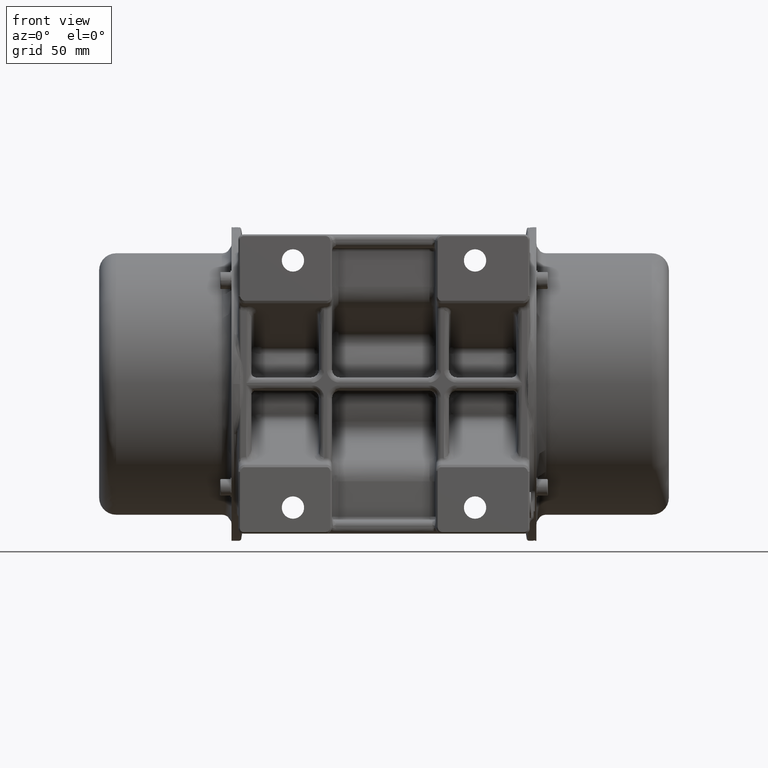
[diagram: clean part render]
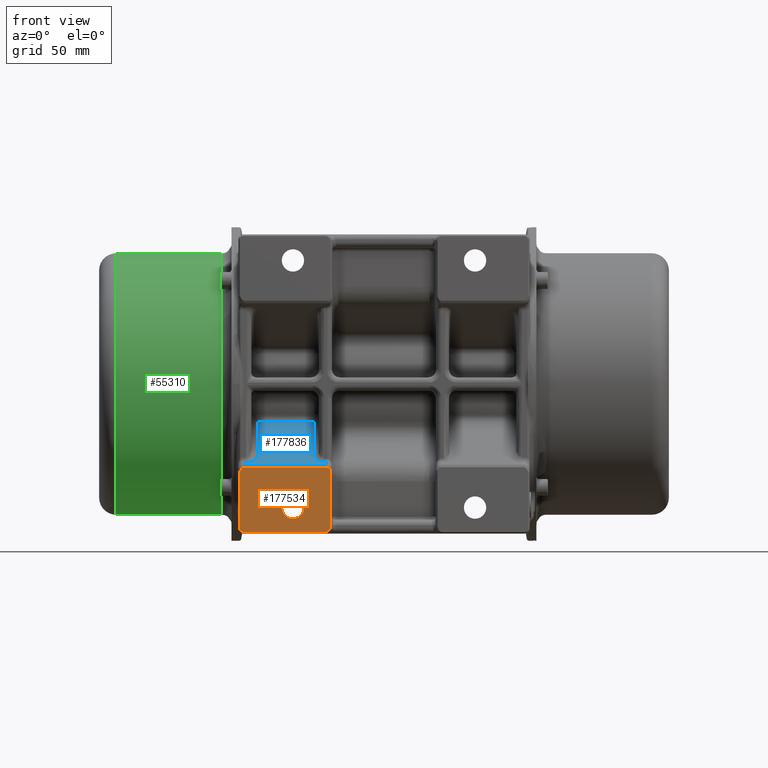
[diagram: same view with three faces highlighted in distinct colors, each labeled with its STEP entity id]
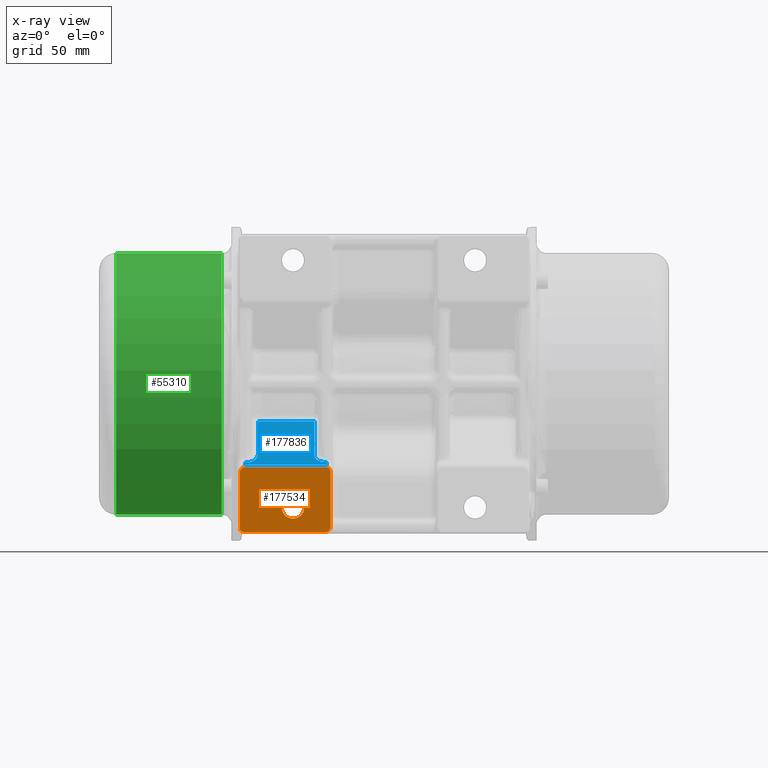
[diagram: x-ray of the same camera — body ghosted, the three highlighted faces saturated]
A machine part, front view with three faces highlighted in distinct colors.
The next image is the same camera in x-ray (body ghosted, the three faces saturated) — at least one of them is partly hidden behind the body in this view.
Their STEP definitions:

[orange] entity #177534 — the highlighted planar face has unit normal (0, -1, 0).
#216 = EDGE_CURVE ( 'NONE', #206508, #206510, #195931, .T. ) ;
#509 = EDGE_CURVE ( 'NONE', #206254, #206252, #75394, .T. ) ;
#518 = EDGE_CURVE ( 'NONE', #206722, #206723, #75395, .T. ) ;
#525 = EDGE_CURVE ( 'NONE', #206724, #206508, #2191, .T. ) ;
#527 = EDGE_CURVE ( 'NONE', #206720, #206510, #2192, .T. ) ;
#533 = EDGE_CURVE ( 'NONE', #206721, #206722, #2194, .T. ) ;
#535 = EDGE_CURVE ( 'NONE', #206723, #206724, #2195, .T. ) ;
#538 = EDGE_CURVE ( 'NONE', #206726, #206727, #2196, .T. ) ;
#540 = EDGE_CURVE ( 'NONE', #206720, #206725, #2197, .T. ) ;
#543 = EDGE_CURVE ( 'NONE', #206727, #206721, #2198, .T. ) ;
#545 = EDGE_CURVE ( 'NONE', #206725, #206726, #75391, .T. ) ;
#2191 = B_SPLINE_CURVE_WITH_KNOTS ( 'NONE', 3,
 ( #92772, #92794, #92795, #92796, #92797, #92798, #92799, #92800, #92801, #92802, #92803, #92804, #92805, #92806, #92807, #92808 ),
 .UNSPECIFIED., .F., .F.,
 ( 4, 1, 1, 1, 1, 1, 1, 1, 1, 1, 3, 4 ),
 ( 0.0000000000000000000, 5.314432684374213300E-005, 0.0001082284596164955900, 0.0001660795883194712300, 0.0002242846225185611400, 0.0003306525912901989500, 0.0003816689397036073500, 0.0004330112648005424600, 0.0005357733041503410000, 0.0006384791223128913300, 0.0008438116372617445400, 0.0008440754877739400700 ),
 .UNSPECIFIED. ) ;
#2192 = B_SPLINE_CURVE_WITH_KNOTS ( 'NONE', 3,
 ( #92776, #92810, #92811, #92812, #92813, #92814, #92815, #92816, #92817, #92818, #92819, #92820, #92821, #92822, #92823, #92824, #92825, #92826, #92827 ),
 .UNSPECIFIED., .F., .F.,
 ( 4, 1, 1, 1, 1, 1, 1, 1, 1, 1, 1, 1, 1, 1, 1, 1, 4 ),
 ( 0.0000000000000000000, 0.01080731625977897700, 0.01621097438966844300, 0.02161463251955796100, 0.02701829064944747500, 0.02972011971439216000, 0.03242194877933617100, 0.03512377784426985700, 0.03647469237679999000, 0.03782560690904873700, 0.03917652133382902600, 0.03985197930673353700, 0.04052743320859841100, 0.04120290425060083000, 0.04187831404685486000, 0.04255380578700251200, 0.04322740033852320200 ),
 .UNSPECIFIED. ) ;
#2194 = B_SPLINE_CURVE_WITH_KNOTS ( 'NONE', 3,
 ( #92809, #92850, #92851, #92852, #92853, #92854, #92855, #92856, #92857, #92858, #92859, #92860 ),
 .UNSPECIFIED., .F., .F.,
 ( 4, 1, 1, 1, 1, 1, 1, 1, 1, 4 ),
 ( 0.0000000000000000000, 0.0004692567345801114500, 0.0009442677603062632000, 0.001427127471713120600, 0.001921198164494955200, 0.002432340359567367900, 0.002972140346874577100, 0.003565464976089192900, 0.003895098362532581700, 0.004244742980769554200 ),
 .UNSPECIFIED. ) ;
#2195 = B_SPLINE_CURVE_WITH_KNOTS ( 'NONE', 3,
 ( #92830, #92862, #92863, #92864, #92865, #92866, #92867, #92868, #92869, #92870, #92871 ),
 .UNSPECIFIED., .F., .F.,
 ( 4, 1, 1, 1, 1, 1, 1, 1, 4 ),
 ( 0.0000000000000000000, 0.0006932026702934095000, 0.001351100953518270900, 0.001971711450042031100, 0.002565270117662586800, 0.003140320210082715400, 0.003702412686460941900, 0.004255107059426286100, 0.004800734924801317200 ),
 .UNSPECIFIED. ) ;
#2196 = B_SPLINE_CURVE_WITH_KNOTS ( 'NONE', 3,
 ( #92849, #92873, #92874, #92875, #92876, #92877, #92878 ),
 .UNSPECIFIED., .F., .F.,
 ( 4, 1, 1, 1, 4 ),
 ( 0.0000000000000000000, 0.001491379859664094200, 0.002982759719328192700, 0.004474139578992285800, 0.005965519438656384500 ),
 .UNSPECIFIED. ) ;
#2197 = B_SPLINE_CURVE_WITH_KNOTS ( 'NONE', 3,
 ( #92861, #92879, #92880, #92881, #92882, #92883, #92884 ),
 .UNSPECIFIED., .F., .F.,
 ( 4, 1, 1, 1, 4 ),
 ( 0.0000000000000000000, 0.001097554870928380300, 0.002195109741856750700, 0.003292664612785122400, 0.004390219483713501400 ),
 .UNSPECIFIED. ) ;
#2198 = B_SPLINE_CURVE_WITH_KNOTS ( 'NONE', 3,
 ( #92872, #92886, #92887, #92888, #92889, #92890, #92891, #92892, #92893, #92894, #92895, #92896, #92897, #92898, #92899, #92900, #92901, #92902, #92903, #92904, #92905 ),
 .UNSPECIFIED., .F., .F.,
 ( 4, 1, 1, 1, 1, 1, 1, 1, 1, 1, 1, 1, 1, 1, 1, 1, 1, 1, 4 ),
 ( 0.0000000000000000000, 0.01079929097707282200, 0.01619893646560925700, 0.02159858195414564300, 0.02699822744268207500, 0.02969805018695026800, 0.03239787293121849200, 0.03509769567548667900, 0.03644760704762080300, 0.03779751841975481600, 0.03914742979185099200, 0.03982238547816754900, 0.04049734116304386900, 0.04117229685399329000, 0.04184725251256236900, 0.04218473042502376300, 0.04252220055045427500, 0.04285931570022436700, 0.04319597176237918700 ),
 .UNSPECIFIED. ) ;
#6542 = AXIS2_PLACEMENT_3D ( 'NONE', #132269, #132271, #132272 ) ;
#35686 = FACE_BOUND ( 'NONE', #199881, .T. ) ;
#35690 = FACE_OUTER_BOUND ( 'NONE', #161795, .T. ) ;
#72706 = CIRCLE ( 'NONE', #142035, 8.599999999999996100 ) ;
#74090 = AXIS2_PLACEMENT_3D ( 'NONE', #92719, #92757, #92758 ) ;
#75391 = LINE ( 'NONE', #92907, #75402 ) ;
#75394 = CIRCLE ( 'NONE', #74090, 8.599999999999996100 ) ;
#75395 = LINE ( 'NONE', #92761, #75397 ) ;
#75397 = VECTOR ( 'NONE', #92771, 1000.000000000000000 ) ;
#75402 = VECTOR ( 'NONE', #92908, 1000.000000000000000 ) ;
#85065 = CARTESIAN_POINT ( 'NONE',  ( -116.1480078830016000, -88.39149657505099400, -67.58869293079969500 ) ) ;
#85197 = CARTESIAN_POINT ( 'NONE',  ( -116.1508643201635200, -88.39182797671669800, -67.61390288004157900 ) ) ;
#85200 = CARTESIAN_POINT ( 'NONE',  ( -116.1539024352094600, -88.39182797671671200, -67.64925396600421000 ) ) ;
#85202 = CARTESIAN_POINT ( 'NONE',  ( -116.1560688532274500, -88.39182797671668400, -67.68679370393213900 ) ) ;
#85205 = CARTESIAN_POINT ( 'NONE',  ( -116.1568075498525900, -88.39182797671668400, -67.70463777397239400 ) ) ;
#85208 = CARTESIAN_POINT ( 'NONE',  ( -116.1570907700692000, -88.39182797671666900, -67.71332835926155300 ) ) ;
#85210 = CARTESIAN_POINT ( 'NONE',  ( -116.1571936941414500, -88.39182797671671200, -67.71700329944312100 ) ) ;
#85213 = CARTESIAN_POINT ( 'NONE',  ( -116.1572582088517300, -88.39182797671674100, -67.71944223814843200 ) ) ;
#85216 = CARTESIAN_POINT ( 'NONE',  ( -116.1572566821342700, -88.39182797671671200, -67.71929420848809400 ) ) ;
#85219 = CARTESIAN_POINT ( 'NONE',  ( -116.1575561292387000, -88.39182797671668400, -67.73214638969800200 ) ) ;
#85222 = CARTESIAN_POINT ( 'NONE',  ( -116.1577943937126900, -88.39182797671668400, -67.74402323202859600 ) ) ;
#85225 = CARTESIAN_POINT ( 'NONE',  ( -116.1578604928423700, -88.39182797671669800, -67.75167444161844800 ) ) ;
#85228 = CARTESIAN_POINT ( 'NONE',  ( -116.1578434190215600, -88.39182797671671200, -67.75362386577217000 ) ) ;
#85231 = CARTESIAN_POINT ( 'NONE',  ( -116.1578219471367500, -88.39182797671669800, -67.75462800061451700 ) ) ;
#85233 = CARTESIAN_POINT ( 'NONE',  ( -116.1579435927305500, -88.39182797671672600, -67.75361906352277700 ) ) ;
#85236 = CARTESIAN_POINT ( 'NONE',  ( -116.1574688382753900, -88.39182797671672600, -67.75832861365471200 ) ) ;
#85239 = CARTESIAN_POINT ( 'NONE',  ( -116.1573467746985700, -88.39182797671669800, -67.76002212846724100 ) ) ;
#85242 = CARTESIAN_POINT ( 'NONE',  ( -116.1593877361226800, -88.39182797671669800, -67.76699669633595100 ) ) ;
#85245 = CARTESIAN_POINT ( 'NONE',  ( -116.1569916187542000, -88.39182797671668400, -67.76978767874443600 ) ) ;
#85248 = CARTESIAN_POINT ( 'NONE',  ( -116.1525611187338700, -88.39182797671669800, -67.77138426192043100 ) ) ;
#85251 = CARTESIAN_POINT ( 'NONE',  ( -116.1489594209385700, -88.39182797671668400, -67.77148922912530800 ) ) ;
#85254 = CARTESIAN_POINT ( 'NONE',  ( -116.1287196392204600, -88.39182797671671200, -67.76741980013655100 ) ) ;
#85257 = CARTESIAN_POINT ( 'NONE',  ( -116.1170019759058600, -88.39182797671669800, -67.76508728232894900 ) ) ;
#85260 = CARTESIAN_POINT ( 'NONE',  ( -116.1093901714099400, -88.39182797671671200, -67.76362523093787600 ) ) ;
#85263 = CARTESIAN_POINT ( 'NONE',  ( -116.1074262843483900, -88.39182797671669800, -67.76326847020978100 ) ) ;
#85266 = CARTESIAN_POINT ( 'NONE',  ( -116.1064055407218200, -88.39182797671671200, -67.76309059255221700 ) ) ;
#85269 = CARTESIAN_POINT ( 'NONE',  ( -116.1081443666253100, -88.39182797671669800, -67.76330655388483100 ) ) ;
#85272 = CARTESIAN_POINT ( 'NONE',  ( -116.0872031854512700, -88.39182797671671200, -67.76057150114914400 ) ) ;
#85274 = CARTESIAN_POINT ( 'NONE',  ( -116.0777364452752900, -88.39182797671671200, -67.76394279110689900 ) ) ;
#85277 = CARTESIAN_POINT ( 'NONE',  ( -116.0773302270490000, -88.39173684050769000, -67.77308326035029000 ) ) ;
#92719 = CARTESIAN_POINT ( 'NONE',  ( -75.35795021057128900, -88.39182797671669800, -95.00000000000000000 ) ) ;
#92757 = DIRECTION ( 'NONE',  ( 0.0000000000000000000, -1.000000000000000000, 0.0000000000000000000 ) ) ;
#92758 = DIRECTION ( 'NONE',  ( 0.0000000000000000000, 0.0000000000000000000, -1.000000000000000000 ) ) ;
#92761 = CARTESIAN_POINT ( 'NONE',  ( -81.35822845703779600, -88.39182797671669800, -63.96034677956350100 ) ) ;
#92771 = DIRECTION ( 'NONE',  ( -1.000000000000000000, 0.0000000000000000000, 0.0000000000000000000 ) ) ;
#92772 = CARTESIAN_POINT ( 'NONE',  ( -115.8333672976467900, -88.39182797671669800, -66.86276124491340100 ) ) ;
#92776 = CARTESIAN_POINT ( 'NONE',  ( -116.1579500566861900, -88.39182797671669800, -111.0000000000000000 ) ) ;
#92794 = CARTESIAN_POINT ( 'NONE',  ( -115.8380612546361900, -88.39182797671674100, -66.88024157434153900 ) ) ;
#92795 = CARTESIAN_POINT ( 'NONE',  ( -115.8533616059374200, -88.39182797671674100, -66.91470590908080900 ) ) ;
#92796 = CARTESIAN_POINT ( 'NONE',  ( -115.8973605723461600, -88.39182797671674100, -66.95413827365330000 ) ) ;
#92797 = CARTESIAN_POINT ( 'NONE',  ( -115.9488694112863700, -88.39182797671674100, -66.98810470114179300 ) ) ;
#92798 = CARTESIAN_POINT ( 'NONE',  ( -116.0163742544099500, -88.39182797671674100, -67.02933110470201000 ) ) ;
#92799 = CARTESIAN_POINT ( 'NONE',  ( -116.0806402752590000, -88.39182797671684000, -67.07712693749900300 ) ) ;
#92800 = CARTESIAN_POINT ( 'NONE',  ( -116.0885625648800100, -88.39182797671674100, -67.14554070047860500 ) ) ;
#92801 = CARTESIAN_POINT ( 'NONE',  ( -116.1000252991411900, -88.39182797671674100, -67.21033814869510100 ) ) ;
#92802 = CARTESIAN_POINT ( 'NONE',  ( -116.1113654192661900, -88.39182797671674100, -67.29265023997000100 ) ) ;
#92803 = CARTESIAN_POINT ( 'NONE',  ( -116.1297309199996000, -88.39182797671674100, -67.42385526203969400 ) ) ;
#92804 = CARTESIAN_POINT ( 'NONE',  ( -116.1413143023690000, -88.39182797671674100, -67.52273210457148900 ) ) ;
#92805 = CARTESIAN_POINT ( 'NONE',  ( -116.1483236293406100, -88.39182797671674100, -67.58866674411980600 ) ) ;
#92806 = CARTESIAN_POINT ( 'NONE',  ( -116.1483326362653500, -88.39182797671674100, -67.58875146956340500 ) ) ;
#92807 = CARTESIAN_POINT ( 'NONE',  ( -116.1483416431900900, -88.39182797671674100, -67.58883619500700500 ) ) ;
#92808 = CARTESIAN_POINT ( 'NONE',  ( -116.1480078830016000, -88.39149657505099400, -67.58869293079969500 ) ) ;
#92809 = CARTESIAN_POINT ( 'NONE',  ( -46.61746543939320000, -88.39182797671669800, -66.80423005379560700 ) ) ;
#92810 = CARTESIAN_POINT ( 'NONE',  ( -116.1579500547793800, -88.39182797671328700, -107.3974545127433700 ) ) ;
#92811 = CARTESIAN_POINT ( 'NONE',  ( -116.1579500519139700, -88.39182797671328700, -101.9936362818583600 ) ) ;
#92812 = CARTESIAN_POINT ( 'NONE',  ( -116.1579500652857700, -88.39182797671328700, -94.78854530653698900 ) ) ;
#92813 = CARTESIAN_POINT ( 'NONE',  ( -116.1579500237375700, -88.39182797671328700, -89.38472707747070000 ) ) ;
#92814 = CARTESIAN_POINT ( 'NONE',  ( -116.1579501538743800, -88.39182797671338700, -84.88154521216937100 ) ) ;
#92815 = CARTESIAN_POINT ( 'NONE',  ( -116.1579498883479600, -88.39182797671328700, -81.27899973730689000 ) ) ;
#92816 = CARTESIAN_POINT ( 'NONE',  ( -116.1579506992571700, -88.39182797671328700, -78.57709058367609600 ) ) ;
#92817 = CARTESIAN_POINT ( 'NONE',  ( -116.1579481622259800, -88.39182797671328700, -76.32549977334859600 ) ) ;
#92818 = CARTESIAN_POINT ( 'NONE',  ( -116.1579533386527700, -88.39182797671328700, -74.52422678636749300 ) ) ;
#92819 = CARTESIAN_POINT ( 'NONE',  ( -116.1579375257677800, -88.39182797671328700, -73.17327300795219000 ) ) ;
#92820 = CARTESIAN_POINT ( 'NONE',  ( -116.1579870140347700, -88.39182797671328700, -72.04747501721550400 ) ) ;
#92821 = CARTESIAN_POINT ( 'NONE',  ( -116.1578900648701700, -88.39182797671328700, -71.14684416852858800 ) ) ;
#92822 = CARTESIAN_POINT ( 'NONE',  ( -116.1581326189098200, -88.39182797671328700, -70.47135106215110100 ) ) ;
#92823 = CARTESIAN_POINT ( 'NONE',  ( -116.1574862507929700, -88.39182797671328700, -69.79592211602360400 ) ) ;
#92824 = CARTESIAN_POINT ( 'NONE',  ( -116.1588018743424200, -88.39182797671328700, -69.12034990364550400 ) ) ;
#92825 = CARTESIAN_POINT ( 'NONE',  ( -116.1577391537995800, -88.39182797671328700, -68.44571305403370300 ) ) ;
#92826 = CARTESIAN_POINT ( 'NONE',  ( -116.1094655579825300, -88.39182797671328700, -67.99595295343959800 ) ) ;
#92827 = CARTESIAN_POINT ( 'NONE',  ( -116.0773302270490000, -88.39173684050769000, -67.77308326035029000 ) ) ;
#92830 = CARTESIAN_POINT ( 'NONE',  ( -112.3579501043700000, -88.39182797671669800, -63.96034677956350100 ) ) ;
#92849 = CARTESIAN_POINT ( 'NONE',  ( -50.35795010436999800, -88.39182797671669800, -113.7999999523162100 ) ) ;
#92850 = CARTESIAN_POINT ( 'NONE',  ( -46.64914175066839900, -88.39182797671669800, -66.62550799163919600 ) ) ;
#92851 = CARTESIAN_POINT ( 'NONE',  ( -46.73613165231550000, -88.39182797671669800, -66.26755745411900000 ) ) ;
#92852 = CARTESIAN_POINT ( 'NONE',  ( -46.92770270494097700, -88.39182797671669800, -65.75848934304440300 ) ) ;
#92853 = CARTESIAN_POINT ( 'NONE',  ( -47.18409740756839500, -88.39182797671669800, -65.28043344611900500 ) ) ;
#92854 = CARTESIAN_POINT ( 'NONE',  ( -47.50520862081390300, -88.39182797671669800, -64.84735683493491400 ) ) ;
#92855 = CARTESIAN_POINT ( 'NONE',  ( -47.89102136406220500, -88.39182797671669800, -64.47475493969810100 ) ) ;
#92856 = CARTESIAN_POINT ( 'NONE',  ( -48.34050216889767900, -88.39182797671669800, -64.18236943119919100 ) ) ;
#92857 = CARTESIAN_POINT ( 'NONE',  ( -48.74865209702870300, -88.39182797671669800, -64.03229963696749400 ) ) ;
#92858 = CARTESIAN_POINT ( 'NONE',  ( -49.08945165020040200, -88.39182797671669800, -63.97087001833029500 ) ) ;
#92859 = CARTESIAN_POINT ( 'NONE',  ( -49.26608088062209800, -88.39182797671669800, -63.96025731747860700 ) ) ;
#92860 = CARTESIAN_POINT ( 'NONE',  ( -49.35795010436999800, -88.39182797671669800, -63.96034677956350100 ) ) ;
#92861 = CARTESIAN_POINT ( 'NONE',  ( -116.1579500566861900, -88.39182797671669800, -111.0000000000000000 ) ) ;
#92862 = CARTESIAN_POINT ( 'NONE',  ( -112.5619931819923900, -88.39182797671669800, -63.96068348742195300 ) ) ;
#92863 = CARTESIAN_POINT ( 'NONE',  ( -112.9558632532098000, -88.39182797671669800, -64.00010664986345400 ) ) ;
#92864 = CARTESIAN_POINT ( 'NONE',  ( -113.5345469719864000, -88.39182797671669800, -64.17926134497240300 ) ) ;
#92865 = CARTESIAN_POINT ( 'NONE',  ( -114.0684028857439900, -88.39182797671669800, -64.46313423454549300 ) ) ;
#92866 = CARTESIAN_POINT ( 'NONE',  ( -114.5461915472086100, -88.39182797671669800, -64.83259191041089800 ) ) ;
#92867 = CARTESIAN_POINT ( 'NONE',  ( -114.9632651194283700, -88.39182797671669800, -65.27004104969400100 ) ) ;
#92868 = CARTESIAN_POINT ( 'NONE',  ( -115.3185000536591600, -88.39182797671669800, -65.76114155909380100 ) ) ;
#92869 = CARTESIAN_POINT ( 'NONE',  ( -115.6108030578859900, -88.39182797671669800, -66.29248395235815400 ) ) ;
#92870 = CARTESIAN_POINT ( 'NONE',  ( -115.7672420092415700, -88.39182797671669800, -66.67169226350249300 ) ) ;
#92871 = CARTESIAN_POINT ( 'NONE',  ( -115.8333672976467900, -88.39182797671669800, -66.86276124491340100 ) ) ;
#92872 = CARTESIAN_POINT ( 'NONE',  ( -46.55795015205370600, -88.39182797671669800, -110.0000000000000000 ) ) ;
#92873 = CARTESIAN_POINT ( 'NONE',  ( -49.86372129479760000, -88.39182797671665500, -113.7999999523164100 ) ) ;
#92874 = CARTESIAN_POINT ( 'NONE',  ( -48.86444441720659900, -88.39182797671665500, -113.6022526055576000 ) ) ;
#92875 = CARTESIAN_POINT ( 'NONE',  ( -47.60138107536320000, -88.39182797671665500, -112.7565690290068000 ) ) ;
#92876 = CARTESIAN_POINT ( 'NONE',  ( -46.75569749881240300, -88.39182797671665500, -111.4935056871634100 ) ) ;
#92877 = CARTESIAN_POINT ( 'NONE',  ( -46.55795015205347900, -88.39182797671665500, -110.4942288095723900 ) ) ;
#92878 = CARTESIAN_POINT ( 'NONE',  ( -46.55795015205370600, -88.39182797671669800, -110.0000000000000000 ) ) ;
#92879 = CARTESIAN_POINT ( 'NONE',  ( -116.1579500566861900, -88.39182797671669800, -111.3641685948949900 ) ) ;
#92880 = CARTESIAN_POINT ( 'NONE',  ( -116.0122414860435500, -88.39182797671669800, -112.1004778698199500 ) ) ;
#92881 = CARTESIAN_POINT ( 'NONE',  ( -115.3891062219037500, -88.39182797671669800, -113.0311561175340100 ) ) ;
#92882 = CARTESIAN_POINT ( 'NONE',  ( -114.4584279741902000, -88.39182797671679700, -113.6542913816734000 ) ) ;
#92883 = CARTESIAN_POINT ( 'NONE',  ( -113.7221186992650100, -88.39182797671669800, -113.7999999523165500 ) ) ;
#92884 = CARTESIAN_POINT ( 'NONE',  ( -113.3579501043699900, -88.39182797671669800, -113.7999999523162100 ) ) ;
#92886 = CARTESIAN_POINT ( 'NONE',  ( -46.55795015220033400, -88.39182797671503500, -106.4001402387402100 ) ) ;
#92887 = CARTESIAN_POINT ( 'NONE',  ( -46.55795015242253500, -88.39182797671503500, -101.0003505968504100 ) ) ;
#92888 = CARTESIAN_POINT ( 'NONE',  ( -46.55795015138523500, -88.39182797671503500, -93.80063107436579600 ) ) ;
#92889 = CARTESIAN_POINT ( 'NONE',  ( -46.55795015460843400, -88.39182797671503500, -88.40084143239700200 ) ) ;
#92890 = CARTESIAN_POINT ( 'NONE',  ( -46.55795014451273800, -88.39182797671503500, -83.90101673109309400 ) ) ;
#92891 = CARTESIAN_POINT ( 'NONE',  ( -46.55795016511163500, -88.39182797671503500, -80.30115696929419800 ) ) ;
#92892 = CARTESIAN_POINT ( 'NONE',  ( -46.55795010220353400, -88.39182797671503500, -77.60126215001029900 ) ) ;
#92893 = CARTESIAN_POINT ( 'NONE',  ( -46.55795029902253600, -88.39182797671503500, -75.35134979403780200 ) ) ;
#92894 = CARTESIAN_POINT ( 'NONE',  ( -46.55794989747192900, -88.39182797671503500, -73.55141992399350700 ) ) ;
#92895 = CARTESIAN_POINT ( 'NONE',  ( -46.55795112381444100, -88.39182797671503500, -72.20147248121369900 ) ) ;
#92896 = CARTESIAN_POINT ( 'NONE',  ( -46.55794728687563100, -88.39182797671503500, -71.07651640687279800 ) ) ;
#92897 = CARTESIAN_POINT ( 'NONE',  ( -46.55795507390433100, -88.39182797671503500, -70.17655126007210200 ) ) ;
#92898 = CARTESIAN_POINT ( 'NONE',  ( -46.55793184086103800, -88.39182797671503500, -69.50157819186229300 ) ) ;
#92899 = CARTESIAN_POINT ( 'NONE',  ( -46.55801635551662800, -88.39182797671513500, -68.82660206459890200 ) ) ;
#92900 = CARTESIAN_POINT ( 'NONE',  ( -46.55776280443034000, -88.39182797671503500, -68.26413163757159500 ) ) ;
#92901 = CARTESIAN_POINT ( 'NONE',  ( -46.55824856072693800, -88.39182797671503500, -67.81413568674341300 ) ) ;
#92902 = CARTESIAN_POINT ( 'NONE',  ( -46.55692103754013500, -88.39182797671503500, -67.47682316240090500 ) ) ;
#92903 = CARTESIAN_POINT ( 'NONE',  ( -46.57606839549051600, -88.39182797671503500, -67.13962896178080100 ) ) ;
#92904 = CARTESIAN_POINT ( 'NONE',  ( -46.60152882229367300, -88.39182797671503500, -66.91562256955430100 ) ) ;
#92905 = CARTESIAN_POINT ( 'NONE',  ( -46.61746543939320000, -88.39182797671669800, -66.80423005379560700 ) ) ;
#92907 = CARTESIAN_POINT ( 'NONE',  ( -81.35822845703779600, -88.39182797671669800, -113.7999999523162100 ) ) ;
#92908 = DIRECTION ( 'NONE',  ( 1.000000000000000000, 0.0000000000000000000, 0.0000000000000000000 ) ) ;
#96037 = CARTESIAN_POINT ( 'NONE',  ( -75.35795021057128900, -88.39182797671669800, -95.00000000000000000 ) ) ;
#96117 = DIRECTION ( 'NONE',  ( 0.0000000000000000000, -1.000000000000000000, 0.0000000000000000000 ) ) ;
#96120 = DIRECTION ( 'NONE',  ( 0.0000000000000000000, 0.0000000000000000000, -1.000000000000000000 ) ) ;
#101593 = CARTESIAN_POINT ( 'NONE',  ( -75.35795021057128900, -88.39182797671669800, -86.40000000000000600 ) ) ;
#101594 = CARTESIAN_POINT ( 'NONE',  ( -75.35795021057128900, -88.39182797671669800, -103.5999999999999900 ) ) ;
#101738 = CARTESIAN_POINT ( 'NONE',  ( -116.1480078830016000, -88.39149657505099400, -67.58869293079969500 ) ) ;
#101739 = CARTESIAN_POINT ( 'NONE',  ( -116.0773302270490000, -88.39173684050769000, -67.77308326035029000 ) ) ;
#101968 = CARTESIAN_POINT ( 'NONE',  ( -116.1579500566861900, -88.39182797671669800, -111.0000000000000000 ) ) ;
#101969 = CARTESIAN_POINT ( 'NONE',  ( -46.61746543939320000, -88.39182797671669800, -66.80423005379560700 ) ) ;
#101971 = CARTESIAN_POINT ( 'NONE',  ( -49.35795010436999800, -88.39182797671669800, -63.96034677956350100 ) ) ;
#101972 = CARTESIAN_POINT ( 'NONE',  ( -112.3579501043700000, -88.39182797671669800, -63.96034677956350100 ) ) ;
#101974 = CARTESIAN_POINT ( 'NONE',  ( -115.8333672976467900, -88.39182797671669800, -66.86276124491340100 ) ) ;
#101975 = CARTESIAN_POINT ( 'NONE',  ( -113.3579501043699900, -88.39182797671669800, -113.7999999523162100 ) ) ;
#101977 = CARTESIAN_POINT ( 'NONE',  ( -50.35795010436999800, -88.39182797671669800, -113.7999999523162100 ) ) ;
#101978 = CARTESIAN_POINT ( 'NONE',  ( -46.55795015205370600, -88.39182797671669800, -110.0000000000000000 ) ) ;
#132269 = CARTESIAN_POINT ( 'NONE',  ( -116.1601108544189900, -88.39182797671669800, -63.95918154377400100 ) ) ;
#132270 = PLANE ( 'NONE',  #6542 ) ;
#132271 = DIRECTION ( 'NONE',  ( 0.0000000000000000000, -1.000000000000000000, 0.0000000000000000000 ) ) ;
#132272 = DIRECTION ( 'NONE',  ( 0.0000000000000000000, 0.0000000000000000000, -1.000000000000000000 ) ) ;
#142035 = AXIS2_PLACEMENT_3D ( 'NONE', #96037, #96117, #96120 ) ;
#161795 = EDGE_LOOP ( 'NONE', ( #198495, #198496, #198497, #198498, #198499, #198500, #198501, #198502, #198503, #198504 ) ) ;
#177534 = ADVANCED_FACE ( 'NONE', ( #35686, #35690 ), #132270, .T. ) ;
#182316 = EDGE_CURVE ( 'NONE', #206252, #206254, #72706, .T. ) ;
#195931 = B_SPLINE_CURVE_WITH_KNOTS ( 'NONE', 3,
 ( #85065, #85197, #85200, #85202, #85205, #85208, #85210, #85213, #85216, #85219, #85222, #85225, #85228, #85231, #85233, #85236, #85239, #85242, #85245, #85248, #85251, #85254, #85257, #85260, #85263, #85266, #85269, #85272, #85274, #85277 ),
 .UNSPECIFIED., .F., .F.,
 ( 4, 1, 1, 1, 1, 2, 2, 1, 1, 2, 2, 2, 2, 2, 1, 1, 2, 2, 4 ),
 ( 0.0000000000000000000, 0.2499999999973535100, 0.3749999999960302900, 0.4374999999953725900, 0.4687499999951301700, 0.4843749999950944200, 0.4999999999950586200, 0.5624999999949998900, 0.5937499999950474100, 0.6093749999952072800, 0.6249999999953671500, 0.6562499999958236700, 0.6874999999962800900, 0.7499999999971929100, 0.8124999999981058500, 0.8437499999984715600, 0.8593749999986301000, 0.8749999999987885200, 1.000000000000000000 ),
 .UNSPECIFIED. ) ;
#198493 = ORIENTED_EDGE ( 'NONE', *, *, #182316, .F. ) ;
#198494 = ORIENTED_EDGE ( 'NONE', *, *, #509, .F. ) ;
#198495 = ORIENTED_EDGE ( 'NONE', *, *, #533, .T. ) ;
#198496 = ORIENTED_EDGE ( 'NONE', *, *, #518, .T. ) ;
#198497 = ORIENTED_EDGE ( 'NONE', *, *, #535, .T. ) ;
#198498 = ORIENTED_EDGE ( 'NONE', *, *, #525, .T. ) ;
#198499 = ORIENTED_EDGE ( 'NONE', *, *, #216, .T. ) ;
#198500 = ORIENTED_EDGE ( 'NONE', *, *, #527, .F. ) ;
#198501 = ORIENTED_EDGE ( 'NONE', *, *, #540, .T. ) ;
#198502 = ORIENTED_EDGE ( 'NONE', *, *, #545, .T. ) ;
#198503 = ORIENTED_EDGE ( 'NONE', *, *, #538, .T. ) ;
#198504 = ORIENTED_EDGE ( 'NONE', *, *, #543, .T. ) ;
#199881 = EDGE_LOOP ( 'NONE', ( #198493, #198494 ) ) ;
#206252 = VERTEX_POINT ( 'NONE', #101593 ) ;
#206254 = VERTEX_POINT ( 'NONE', #101594 ) ;
#206508 = VERTEX_POINT ( 'NONE', #101738 ) ;
#206510 = VERTEX_POINT ( 'NONE', #101739 ) ;
#206720 = VERTEX_POINT ( 'NONE', #101968 ) ;
#206721 = VERTEX_POINT ( 'NONE', #101969 ) ;
#206722 = VERTEX_POINT ( 'NONE', #101971 ) ;
#206723 = VERTEX_POINT ( 'NONE', #101972 ) ;
#206724 = VERTEX_POINT ( 'NONE', #101974 ) ;
#206725 = VERTEX_POINT ( 'NONE', #101975 ) ;
#206726 = VERTEX_POINT ( 'NONE', #101977 ) ;
#206727 = VERTEX_POINT ( 'NONE', #101978 ) ;

[blue] entity #177836 — the highlighted planar face has unit normal (0, -0.5736, 0.8192).
#562 = EDGE_CURVE ( 'NONE', #206729, #206733, #75408, .T. ) ;
#700 = EDGE_CURVE ( 'NONE', #206730, #206729, #75464, .T. ) ;
#708 = EDGE_CURVE ( 'NONE', #206769, #206730, #75463, .T. ) ;
#1045 = EDGE_CURVE ( 'NONE', #206899, #206900, #62419, .T. ) ;
#1047 = EDGE_CURVE ( 'NONE', #206733, #206895, #75643, .T. ) ;
#1048 = EDGE_CURVE ( 'NONE', #206901, #206769, #62421, .T. ) ;
#1050 = EDGE_CURVE ( 'NONE', #206898, #206899, #75642, .T. ) ;
#1053 = EDGE_CURVE ( 'NONE', #206897, #206898, #75652, .T. ) ;
#1055 = EDGE_CURVE ( 'NONE', #206900, #206901, #75654, .T. ) ;
#1058 = EDGE_CURVE ( 'NONE', #206895, #206902, #75656, .T. ) ;
#1062 = EDGE_CURVE ( 'NONE', #206897, #206902, #62426, .T. ) ;
#8834 = ORIENTED_EDGE ( 'NONE', *, *, #1053, .T. ) ;
#8835 = ORIENTED_EDGE ( 'NONE', *, *, #1050, .T. ) ;
#8836 = ORIENTED_EDGE ( 'NONE', *, *, #1045, .T. ) ;
#8837 = ORIENTED_EDGE ( 'NONE', *, *, #1055, .T. ) ;
#8838 = ORIENTED_EDGE ( 'NONE', *, *, #1048, .T. ) ;
#8839 = ORIENTED_EDGE ( 'NONE', *, *, #708, .T. ) ;
#8840 = ORIENTED_EDGE ( 'NONE', *, *, #700, .T. ) ;
#8841 = ORIENTED_EDGE ( 'NONE', *, *, #562, .T. ) ;
#8842 = ORIENTED_EDGE ( 'NONE', *, *, #1047, .T. ) ;
#8843 = ORIENTED_EDGE ( 'NONE', *, *, #1058, .T. ) ;
#8844 = ORIENTED_EDGE ( 'NONE', *, *, #1062, .F. ) ;
#26356 = CARTESIAN_POINT ( 'NONE',  ( -112.3579501043700000, -63.58734720924280700, -45.39206231711680300 ) ) ;
#26359 = DIRECTION ( 'NONE',  ( 0.0000000000000000000, -0.8191520442889912400, -0.5735764363510470500 ) ) ;
#26369 = CARTESIAN_POINT ( 'NONE',  ( -80.85795010437000500, -85.02394579496150600, -60.40213024041259600 ) ) ;
#26447 = DIRECTION ( 'NONE',  ( -1.000000000000000000, 0.0000000000000000000, 0.0000000000000000000 ) ) ;
#32588 = CARTESIAN_POINT ( 'NONE',  ( -99.37624417536729000, -39.76584893397584600, -28.71206965332525100 ) ) ;
#32631 = CARTESIAN_POINT ( 'NONE',  ( -102.3579501043700000, -76.02394579496149200, -54.10026239652519600 ) ) ;
#32667 = CARTESIAN_POINT ( 'NONE',  ( -99.64630919275627700, -39.76613533818714800, -28.71227019571295000 ) ) ;
#32669 = CARTESIAN_POINT ( 'NONE',  ( -100.0457114308880200, -39.79369270401630800, -28.73156607099975400 ) ) ;
#32671 = CARTESIAN_POINT ( 'NONE',  ( -100.4365707370922800, -39.86194170911382200, -28.77935453884433800 ) ) ;
#32673 = CARTESIAN_POINT ( 'NONE',  ( -100.6952451785779100, -39.91648363234958900, -28.81754520464246700 ) ) ;
#32675 = CARTESIAN_POINT ( 'NONE',  ( -100.8250704345501600, -39.94868543004700000, -28.84009314613410200 ) ) ;
#32677 = CARTESIAN_POINT ( 'NONE',  ( -101.4550781422381200, -40.12820545651938200, -28.96579442192967200 ) ) ;
#32679 = CARTESIAN_POINT ( 'NONE',  ( -101.9336998420551100, -40.34218741617031900, -29.11562620311814300 ) ) ;
#32681 = CARTESIAN_POINT ( 'NONE',  ( -102.3579501043700000, -40.61317352494349800, -29.30537271923124700 ) ) ;
#32684 = CARTESIAN_POINT ( 'NONE',  ( -49.35795010436999800, -63.58734720924280700, -45.39206231711680300 ) ) ;
#32686 = DIRECTION ( 'NONE',  ( 0.0000000000000000000, 0.8191520442889919100, 0.5735764363510458300 ) ) ;
#32688 = CARTESIAN_POINT ( 'NONE',  ( -58.85795031677260200, -76.88431044948809800, -54.70269621323389900 ) ) ;
#32691 = CARTESIAN_POINT ( 'NONE',  ( -102.3579473239664400, -76.28192667488588100, -54.28090255336221800 ) ) ;
#32693 = CARTESIAN_POINT ( 'NONE',  ( -102.3744906075550200, -76.66762867189847000, -54.55097399917296000 ) ) ;
#32695 = CARTESIAN_POINT ( 'NONE',  ( -102.4158550724346100, -77.05142668459994600, -54.81971226081645200 ) ) ;
#32697 = CARTESIAN_POINT ( 'NONE',  ( -102.4489472004189700, -77.30686891877627400, -54.99857483876383700 ) ) ;
#32699 = CARTESIAN_POINT ( 'NONE',  ( -102.4680757424505900, -77.43336623766859400, -55.08714921501555800 ) ) ;
#32701 = CARTESIAN_POINT ( 'NONE',  ( -102.5347876816000200, -77.81829699920957900, -55.35668063593537600 ) ) ;
#32703 = CARTESIAN_POINT ( 'NONE',  ( -102.6178675873648600, -78.19895587805528700, -55.62322085238960100 ) ) ;
#32705 = CARTESIAN_POINT ( 'NONE',  ( -102.7434380856673800, -78.63558210865859600, -55.92894983043812100 ) ) ;
#32707 = CARTESIAN_POINT ( 'NONE',  ( -102.8033920009920900, -78.82110568004925700, -56.05885483364144100 ) ) ;
#32709 = CARTESIAN_POINT ( 'NONE',  ( -102.8447252750932000, -78.94443207075177300, -56.14520890207153100 ) ) ;
#32711 = CARTESIAN_POINT ( 'NONE',  ( -102.8655181176126400, -79.00437060085722900, -56.18717831268060800 ) ) ;
#32713 = CARTESIAN_POINT ( 'NONE',  ( -102.9784502546552600, -79.31863997715790000, -56.40723209899479700 ) ) ;
#32715 = CARTESIAN_POINT ( 'NONE',  ( -103.1300501787550100, -79.68823009940466300, -56.66602188863981100 ) ) ;
#32717 = CARTESIAN_POINT ( 'NONE',  ( -103.3350591362563300, -80.10623559905953100, -56.95871249051129600 ) ) ;
#32719 = CARTESIAN_POINT ( 'NONE',  ( -103.4445992098532400, -80.31194260481211700, -57.10275008660174500 ) ) ;
#32721 = CARTESIAN_POINT ( 'NONE',  ( -103.4930525831474900, -80.39939651926138700, -57.16398597674510300 ) ) ;
#32723 = CARTESIAN_POINT ( 'NONE',  ( -103.5256898603364000, -80.45754218870024500, -57.20470001280043000 ) ) ;
#32725 = CARTESIAN_POINT ( 'NONE',  ( -103.5414810737380300, -80.48532992458365200, -57.22415719493579900 ) ) ;
#32727 = CARTESIAN_POINT ( 'NONE',  ( -103.6976185302246900, -80.75643263396264600, -57.41398535567204000 ) ) ;
#32729 = CARTESIAN_POINT ( 'NONE',  ( -103.9215127986202000, -81.10679020504190400, -57.65930836801058500 ) ) ;
#32731 = CARTESIAN_POINT ( 'NONE',  ( -104.2102170163048800, -81.49609346547218500, -57.93190144561346200 ) ) ;
#32733 = CARTESIAN_POINT ( 'NONE',  ( -104.3614426846197700, -81.68588328589676500, -58.06479370855021200 ) ) ;
#32735 = CARTESIAN_POINT ( 'NONE',  ( -104.4277265909273600, -81.76617996398076100, -58.12101804783784300 ) ) ;
#32737 = CARTESIAN_POINT ( 'NONE',  ( -104.4722431741549400, -81.81947956795146100, -58.15833883232173200 ) ) ;
#32739 = CARTESIAN_POINT ( 'NONE',  ( -104.4933746443199000, -81.84450414623638900, -58.17586123067732000 ) ) ;
#32741 = CARTESIAN_POINT ( 'NONE',  ( -104.7082593786869900, -82.09585392825795200, -58.35185824277622400 ) ) ;
#32743 = CARTESIAN_POINT ( 'NONE',  ( -105.0097795265212300, -82.41556385118065000, -58.57572154084711300 ) ) ;
#32745 = CARTESIAN_POINT ( 'NONE',  ( -105.3878155775143700, -82.76156830165470500, -58.81799646532319800 ) ) ;
#32747 = CARTESIAN_POINT ( 'NONE',  ( -105.5833992393076200, -82.92782291199120000, -58.93440919674287700 ) ) ;
#32749 = CARTESIAN_POINT ( 'NONE',  ( -105.6686277307111700, -82.99762897037096800, -58.98328792503311700 ) ) ;
#32751 = CARTESIAN_POINT ( 'NONE',  ( -105.7257593743276200, -83.04384502762887600, -59.01564875671143500 ) ) ;
#32753 = CARTESIAN_POINT ( 'NONE',  ( -105.7531559386205900, -83.06574644097470600, -59.03098429143363300 ) ) ;
#32755 = CARTESIAN_POINT ( 'NONE',  ( -105.9041762053441700, -83.18490979807073400, -59.11442337235064300 ) ) ;
#32757 = CARTESIAN_POINT ( 'NONE',  ( -106.0889988833546500, -83.32318822971296900, -59.21124697255837100 ) ) ;
#32759 = CARTESIAN_POINT ( 'NONE',  ( -106.3109224674320500, -83.47625727210119400, -59.31842706990512700 ) ) ;
#32761 = CARTESIAN_POINT ( 'NONE',  ( -106.4073819591222000, -83.54008919144024500, -59.36312266100473100 ) ) ;
#32763 = CARTESIAN_POINT ( 'NONE',  ( -106.4719881500774400, -83.58225067126018400, -59.39264444699672700 ) ) ;
#32765 = CARTESIAN_POINT ( 'NONE',  ( -106.5033081419435300, -83.60241589802362200, -59.40676429078622800 ) ) ;
#32767 = CARTESIAN_POINT ( 'NONE',  ( -106.6719881111031600, -83.70944866526042500, -59.48170944124086600 ) ) ;
#32769 = CARTESIAN_POINT ( 'NONE',  ( -106.8775319668871000, -83.83232679385292800, -59.56774963316242100 ) ) ;
#32771 = CARTESIAN_POINT ( 'NONE',  ( -107.1228069443548600, -83.96595252438368100, -59.66131537697883400 ) ) ;
#32773 = CARTESIAN_POINT ( 'NONE',  ( -107.2290977516381500, -84.02113524757678000, -59.69995473573757700 ) ) ;
#32775 = CARTESIAN_POINT ( 'NONE',  ( -107.3002189475597100, -84.05746029703117000, -59.72538980919139800 ) ) ;
#32776 = CARTESIAN_POINT ( 'NONE',  ( -107.3346889057708300, -84.07478783131736600, -59.73752267931715200 ) ) ;
#32778 = CARTESIAN_POINT ( 'NONE',  ( -107.5199000273181200, -84.16629966210122400, -59.80159995306740900 ) ) ;
#32780 = CARTESIAN_POINT ( 'NONE',  ( -107.7451329061180200, -84.26991069639748800, -59.87414918032335700 ) ) ;
#32782 = CARTESIAN_POINT ( 'NONE',  ( -108.0131187807019200, -84.37993470178209100, -59.95118881827767900 ) ) ;
#32784 = CARTESIAN_POINT ( 'NONE',  ( -108.1290871946629600, -84.42476166095526900, -59.98257699300575000 ) ) ;
#32786 = CARTESIAN_POINT ( 'NONE',  ( -108.2066477650489400, -84.45412937018370800, -60.00314048438746500 ) ) ;
#32788 = CARTESIAN_POINT ( 'NONE',  ( -108.2443936671906200, -84.46813422656228500, -60.01294679039529700 ) ) ;
#32790 = CARTESIAN_POINT ( 'NONE',  ( -108.4453292165017300, -84.54107151415875900, -60.06401802898690800 ) ) ;
#32792 = CARTESIAN_POINT ( 'NONE',  ( -108.6885635563021300, -84.62165653542931000, -60.12044426834731300 ) ) ;
#32794 = CARTESIAN_POINT ( 'NONE',  ( -108.9760323938331900, -84.70352787684927900, -60.17777119877292300 ) ) ;
#32796 = CARTESIAN_POINT ( 'NONE',  ( -109.1000252044387100, -84.73601319815870200, -60.20051766563494100 ) ) ;
#32798 = CARTESIAN_POINT ( 'NONE',  ( -109.1828630515613100, -84.75709176871120600, -60.21527703963052100 ) ) ;
#32800 = CARTESIAN_POINT ( 'NONE',  ( -109.2231581791130300, -84.76705170608642000, -60.22225106286074200 ) ) ;
#32802 = CARTESIAN_POINT ( 'NONE',  ( -109.9508717331511900, -84.94132155693026200, -60.34427612610427600 ) ) ;
#32804 = CARTESIAN_POINT ( 'NONE',  ( -110.6482001483537200, -85.02353586398972100, -60.40184320365596400 ) ) ;
#32806 = CARTESIAN_POINT ( 'NONE',  ( -111.3579501043700000, -85.02394579496150600, -60.40213024041259600 ) ) ;
#32809 = CARTESIAN_POINT ( 'NONE',  ( -80.85795010437000500, -39.76584893397589600, -28.71206965332525100 ) ) ;
#32811 = DIRECTION ( 'NONE',  ( -1.000000000000000000, 0.0000000000000000000, 0.0000000000000000000 ) ) ;
#32814 = CARTESIAN_POINT ( 'NONE',  ( -58.85795031677250200, -63.58734720924280700, -45.39206231711680300 ) ) ;
#32816 = DIRECTION ( 'NONE',  ( 0.0000000000000000000, 0.8191520442889919100, 0.5735764363510458300 ) ) ;
#32819 = CARTESIAN_POINT ( 'NONE',  ( -102.3579501043700000, -63.58734720924280700, -45.39206231711680300 ) ) ;
#32821 = DIRECTION ( 'NONE',  ( 0.0000000000000000000, -0.8191520442889914700, -0.5735764363510466000 ) ) ;
#32824 = CARTESIAN_POINT ( 'NONE',  ( -50.35795021057130300, -84.38431044948808300, -59.95425274980669900 ) ) ;
#32826 = DIRECTION ( 'NONE',  ( -1.000000000000000000, 0.0000000000000000000, 0.0000000000000000000 ) ) ;
#32846 = CARTESIAN_POINT ( 'NONE',  ( -58.85886235123489700, -77.37362120992411000, -55.04531529621829800 ) ) ;
#32848 = CARTESIAN_POINT ( 'NONE',  ( -58.76197351991668000, -78.34882434882028700, -55.72815988535930400 ) ) ;
#32850 = CARTESIAN_POINT ( 'NONE',  ( -58.33978048146849500, -79.75191667146219700, -56.71061570647729900 ) ) ;
#32852 = CARTESIAN_POINT ( 'NONE',  ( -57.65241626926240300, -81.04960266724999900, -57.61926522295699700 ) ) ;
#32854 = CARTESIAN_POINT ( 'NONE',  ( -56.72491201246730000, -82.19171977382210100, -58.41898423049708100 ) ) ;
#32856 = CARTESIAN_POINT ( 'NONE',  ( -55.58875829678877500, -83.13541966888630000, -59.07977001082880300 ) ) ;
#32858 = CARTESIAN_POINT ( 'NONE',  ( -54.28367905267010200, -83.84322401792579200, -59.57537995160380000 ) ) ;
#32860 = CARTESIAN_POINT ( 'NONE',  ( -53.08054701263430500, -84.21364371202895400, -59.83475061371620300 ) ) ;
#32862 = CARTESIAN_POINT ( 'NONE',  ( -52.09749441747400300, -84.35989082394721100, -59.93715394392267400 ) ) ;
#32864 = CARTESIAN_POINT ( 'NONE',  ( -51.60343390553550300, -84.38419582088570800, -59.95417248599517300 ) ) ;
#32866 = CARTESIAN_POINT ( 'NONE',  ( -51.35795031677260200, -84.38431044948808300, -59.95425274980669900 ) ) ;
#62419 = B_SPLINE_CURVE_WITH_KNOTS ( 'NONE', 3,
 ( #32588, #32667, #32669, #32671, #32673, #32675, #32677, #32679, #32681 ),
 .UNSPECIFIED., .F., .F.,
 ( 4, 1, 2, 2, 4 ),
 ( 0.0000000000000000000, 0.2499999999999961100, 0.3750000000000007200, 0.5000000000000053300, 1.000000000000000000 ),
 .UNSPECIFIED. ) ;
#62421 = B_SPLINE_CURVE_WITH_KNOTS ( 'NONE', 3,
 ( #32631, #32691, #32693, #32695, #32697, #32699, #32701, #32703, #32705, #32707, #32709, #32711, #32713, #32715, #32717, #32719, #32721, #32723, #32725, #32727, #32729, #32731, #32733, #32735, #32737, #32739, #32741, #32743, #32745, #32747, #32749, #32751, #32753, #32755, #32757, #32759, #32761, #32763, #32765, #32767, #32769, #32771, #32773, #32775, #32776, #32778, #32780, #32782, #32784, #32786, #32788, #32790, #32792, #32794, #32796, #32798, #32800, #32802, #32804, #32806 ),
 .UNSPECIFIED., .F., .F.,
 ( 4, 1, 2, 2, 1, 1, 2, 2, 1, 1, 1, 2, 2, 1, 1, 1, 2, 2, 1, 1, 1, 2, 2, 1, 1, 2, 2, 1, 1, 2, 2, 1, 1, 2, 2, 1, 1, 2, 2, 4 ),
 ( 0.0000000000000000000, 0.06249999999999331100, 0.09374999999999006400, 0.1249999999999868200, 0.1874999999999821500, 0.2187499999999812900, 0.2343749999999794100, 0.2499999999999775200, 0.3124999999999664200, 0.3437499999999623600, 0.3593749999999598100, 0.3671874999999590900, 0.3749999999999583700, 0.4374999999999589200, 0.4687499999999579200, 0.4843749999999583700, 0.4921874999999574800, 0.4999999999999565900, 0.5624999999999551500, 0.5937499999999543700, 0.6093749999999537000, 0.6171874999999515900, 0.6249999999999494800, 0.6562499999999502600, 0.6718749999999509300, 0.6796874999999515900, 0.6874999999999521500, 0.7187499999999507100, 0.7343749999999510400, 0.7421874999999525900, 0.7499999999999540400, 0.7812499999999599200, 0.7968749999999628100, 0.8046874999999629200, 0.8124999999999631400, 0.8437499999999683600, 0.8593749999999714700, 0.8671874999999729100, 0.8749999999999743500, 1.000000000000000000 ),
 .UNSPECIFIED. ) ;
#62426 = B_SPLINE_CURVE_WITH_KNOTS ( 'NONE', 3,
 ( #32688, #32846, #32848, #32850, #32852, #32854, #32856, #32858, #32860, #32862, #32864, #32866 ),
 .UNSPECIFIED., .F., .F.,
 ( 4, 1, 1, 1, 1, 1, 1, 1, 1, 4 ),
 ( 0.0000000000000000000, 0.1414721732991666400, 0.2812429406884787700, 0.4168652849404894100, 0.5464436043083155100, 0.6688969311307680900, 0.7842165482222074300, 0.8936624034086357900, 0.9470500639897387900, 1.000000000000000000 ),
 .UNSPECIFIED. ) ;
#75401 = VECTOR ( 'NONE', #93006, 1000.000000000000000 ) ;
#75408 = LINE ( 'NONE', #92995, #75401 ) ;
#75463 = LINE ( 'NONE', #26369, #75470 ) ;
#75464 = LINE ( 'NONE', #26356, #75466 ) ;
#75466 = VECTOR ( 'NONE', #26359, 1000.000000000000000 ) ;
#75470 = VECTOR ( 'NONE', #26447, 1000.000000000000000 ) ;
#75642 = LINE ( 'NONE', #32809, #75649 ) ;
#75643 = LINE ( 'NONE', #32684, #75644 ) ;
#75644 = VECTOR ( 'NONE', #32686, 1000.000000000000100 ) ;
#75649 = VECTOR ( 'NONE', #32811, 1000.000000000000000 ) ;
#75652 = LINE ( 'NONE', #32814, #75653 ) ;
#75653 = VECTOR ( 'NONE', #32816, 1000.000000000000100 ) ;
#75654 = LINE ( 'NONE', #32819, #75655 ) ;
#75655 = VECTOR ( 'NONE', #32821, 1000.000000000000000 ) ;
#75656 = LINE ( 'NONE', #32824, #75657 ) ;
#75657 = VECTOR ( 'NONE', #32826, 1000.000000000000000 ) ;
#92995 = CARTESIAN_POINT ( 'NONE',  ( -80.85795010437000500, -87.40884548450971200, -62.07205498090829800 ) ) ;
#93006 = DIRECTION ( 'NONE',  ( 1.000000000000000000, 0.0000000000000000000, 0.0000000000000000000 ) ) ;
#101981 = CARTESIAN_POINT ( 'NONE',  ( -112.3579501043700000, -87.40884548450971200, -62.07205498090829800 ) ) ;
#101983 = CARTESIAN_POINT ( 'NONE',  ( -112.3579500979020100, -85.02392704409990600, -60.40215700765799800 ) ) ;
#101987 = CARTESIAN_POINT ( 'NONE',  ( -49.35795010436999800, -87.40884548450971200, -62.07205498090829800 ) ) ;
#102041 = CARTESIAN_POINT ( 'NONE',  ( -111.3579501043700000, -85.02394579496150600, -60.40213024041259600 ) ) ;
#102321 = CARTESIAN_POINT ( 'NONE',  ( -49.35795010436999800, -84.38431044948808300, -59.95425274980669900 ) ) ;
#102326 = CARTESIAN_POINT ( 'NONE',  ( -58.85795031677260200, -76.88431044948809800, -54.70269621323389900 ) ) ;
#102329 = CARTESIAN_POINT ( 'NONE',  ( -58.85795031677260200, -39.76584893397584600, -28.71206965332525100 ) ) ;
#102331 = CARTESIAN_POINT ( 'NONE',  ( -99.37624417536729000, -39.76584893397584600, -28.71206965332525100 ) ) ;
#102334 = CARTESIAN_POINT ( 'NONE',  ( -102.3579501043700000, -40.61317352494349800, -29.30537271923124700 ) ) ;
#102336 = CARTESIAN_POINT ( 'NONE',  ( -102.3579501043700000, -76.02394579496149200, -54.10026239652519600 ) ) ;
#102339 = CARTESIAN_POINT ( 'NONE',  ( -51.35795031677260200, -84.38431044948808300, -59.95425274980669900 ) ) ;
#141104 = AXIS2_PLACEMENT_3D ( 'NONE', #164839, #164988, #164990 ) ;
#156424 = FACE_OUTER_BOUND ( 'NONE', #200532, .T. ) ;
#164839 = CARTESIAN_POINT ( 'NONE',  ( -112.3591094958523900, -39.76489921607294800, -28.71140465369045100 ) ) ;
#164984 = PLANE ( 'NONE',  #141104 ) ;
#164988 = DIRECTION ( 'NONE',  ( 0.0000000000000000000, -0.5735764363510459400, 0.8191520442889920200 ) ) ;
#164990 = DIRECTION ( 'NONE',  ( 0.0000000000000000000, -0.8191520442889919100, -0.5735764363510458300 ) ) ;
#177836 = ADVANCED_FACE ( 'NONE', ( #156424 ), #164984, .T. ) ;
#200532 = EDGE_LOOP ( 'NONE', ( #8834, #8835, #8836, #8837, #8838, #8839, #8840, #8841, #8842, #8843, #8844 ) ) ;
#206729 = VERTEX_POINT ( 'NONE', #101981 ) ;
#206730 = VERTEX_POINT ( 'NONE', #101983 ) ;
#206733 = VERTEX_POINT ( 'NONE', #101987 ) ;
#206769 = VERTEX_POINT ( 'NONE', #102041 ) ;
#206895 = VERTEX_POINT ( 'NONE', #102321 ) ;
#206897 = VERTEX_POINT ( 'NONE', #102326 ) ;
#206898 = VERTEX_POINT ( 'NONE', #102329 ) ;
#206899 = VERTEX_POINT ( 'NONE', #102331 ) ;
#206900 = VERTEX_POINT ( 'NONE', #102334 ) ;
#206901 = VERTEX_POINT ( 'NONE', #102336 ) ;
#206902 = VERTEX_POINT ( 'NONE', #102339 ) ;

[green] entity #55310 — the highlighted cylindrical surface (partial cylindrical patch) has radius 100.5 mm, axis along (1, -0, 0).
#8393 = CARTESIAN_POINT ( 'NONE',  ( -211.3579501043699900, 36.10843668353398800, -100.4999999999994500 ) ) ;
#8395 = CARTESIAN_POINT ( 'NONE',  ( -211.3579501043699900, 36.10843668353400200, 100.5000000000005500 ) ) ;
#8397 = CARTESIAN_POINT ( 'NONE',  ( -130.0579501043700100, 36.10843668353398800, -100.4999999999994500 ) ) ;
#8399 = CARTESIAN_POINT ( 'NONE',  ( -130.0579501043700100, 36.10843668353400200, 100.5000000000005500 ) ) ;
#30961 = FACE_OUTER_BOUND ( 'NONE', #186778, .T. ) ;
#30968 = CYLINDRICAL_SURFACE ( 'NONE', #124850, 100.5000000000000000 ) ;
#31685 = LINE ( 'NONE', #94122, #31687 ) ;
#31687 = VECTOR ( 'NONE', #94168, 1000.000000000000000 ) ;
#31690 = VECTOR ( 'NONE', #94222, 1000.000000000000000 ) ;
#31693 = CIRCLE ( 'NONE', #125066, 100.5000000000000000 ) ;
#31701 = LINE ( 'NONE', #94211, #31690 ) ;
#31702 = CIRCLE ( 'NONE', #125071, 100.5000000000000000 ) ;
#55310 = ADVANCED_FACE ( 'NONE', ( #30961 ), #30968, .T. ) ;
#62287 = EDGE_CURVE ( 'NONE', #173491, #173493, #31685, .T. ) ;
#62291 = EDGE_CURVE ( 'NONE', #173492, #173491, #31693, .T. ) ;
#62298 = EDGE_CURVE ( 'NONE', #173494, #173493, #31702, .T. ) ;
#62299 = EDGE_CURVE ( 'NONE', #173492, #173494, #31701, .T. ) ;
#69890 = ORIENTED_EDGE ( 'NONE', *, *, #62291, .T. ) ;
#69894 = ORIENTED_EDGE ( 'NONE', *, *, #62287, .T. ) ;
#69898 = ORIENTED_EDGE ( 'NONE', *, *, #62298, .F. ) ;
#69901 = ORIENTED_EDGE ( 'NONE', *, *, #62299, .F. ) ;
#70172 = DIRECTION ( 'NONE',  ( 0.0000000000000000000, 0.0000000000000000000, 1.000000000000000000 ) ) ;
#70174 = DIRECTION ( 'NONE',  ( 1.000000000000000000, -6.617445194922528500E-024, 3.202887553410824600E-031 ) ) ;
#70182 = CARTESIAN_POINT ( 'NONE',  ( -106.8419361915210000, 36.10843668353400200, 5.551115123125780700E-013 ) ) ;
#94122 = CARTESIAN_POINT ( 'NONE',  ( -106.8419361915210000, 36.10843668353398800, -100.4999999999994500 ) ) ;
#94168 = DIRECTION ( 'NONE',  ( 1.000000000000000000, -6.617445194922528500E-024, 3.202887553410824600E-031 ) ) ;
#94180 = CARTESIAN_POINT ( 'NONE',  ( -211.3579501043699900, 36.10843668353400200, 5.551115123125790800E-013 ) ) ;
#94183 = DIRECTION ( 'NONE',  ( 1.000000000000000000, -6.617445194922528500E-024, 3.202887553410824600E-031 ) ) ;
#94185 = DIRECTION ( 'NONE',  ( 0.0000000000000000000, 0.0000000000000000000, 1.000000000000000000 ) ) ;
#94211 = CARTESIAN_POINT ( 'NONE',  ( -106.8419361915210000, 36.10843668353400200, 100.5000000000005500 ) ) ;
#94215 = CARTESIAN_POINT ( 'NONE',  ( -130.0579501043700100, 36.10843668353400200, 5.551115123125780700E-013 ) ) ;
#94217 = DIRECTION ( 'NONE',  ( 1.000000000000000000, -6.617445194922528500E-024, 3.202887553410824600E-031 ) ) ;
#94219 = DIRECTION ( 'NONE',  ( 0.0000000000000000000, 0.0000000000000000000, 1.000000000000000000 ) ) ;
#94222 = DIRECTION ( 'NONE',  ( 1.000000000000000000, -6.617445194922528500E-024, 3.202887553410824600E-031 ) ) ;
#124850 = AXIS2_PLACEMENT_3D ( 'NONE', #70182, #70174, #70172 ) ;
#125066 = AXIS2_PLACEMENT_3D ( 'NONE', #94180, #94183, #94185 ) ;
#125071 = AXIS2_PLACEMENT_3D ( 'NONE', #94215, #94217, #94219 ) ;
#173491 = VERTEX_POINT ( 'NONE', #8393 ) ;
#173492 = VERTEX_POINT ( 'NONE', #8395 ) ;
#173493 = VERTEX_POINT ( 'NONE', #8397 ) ;
#173494 = VERTEX_POINT ( 'NONE', #8399 ) ;
#186778 = EDGE_LOOP ( 'NONE', ( #69890, #69894, #69898, #69901 ) ) ;